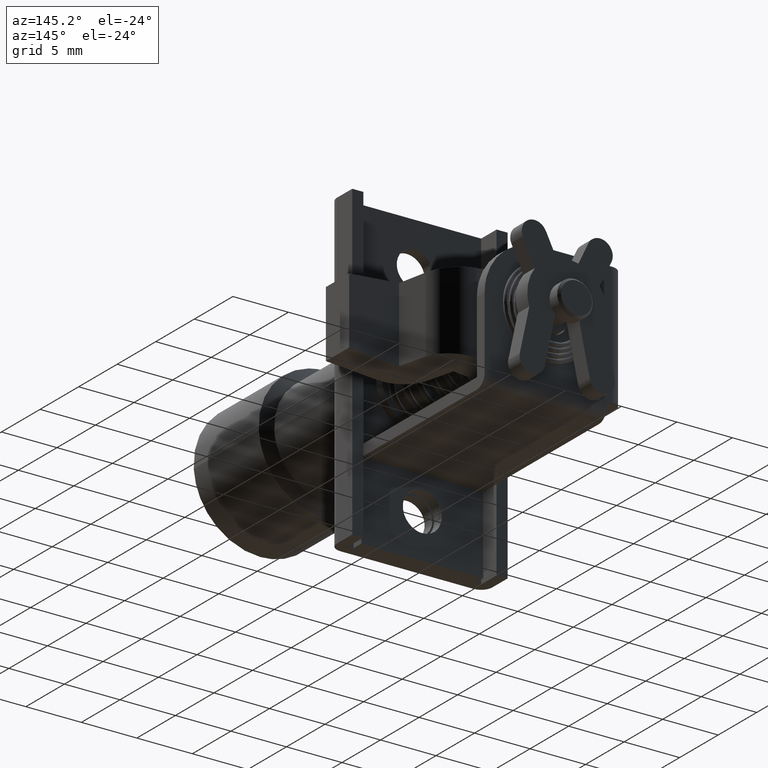
[diagram: clean part render]
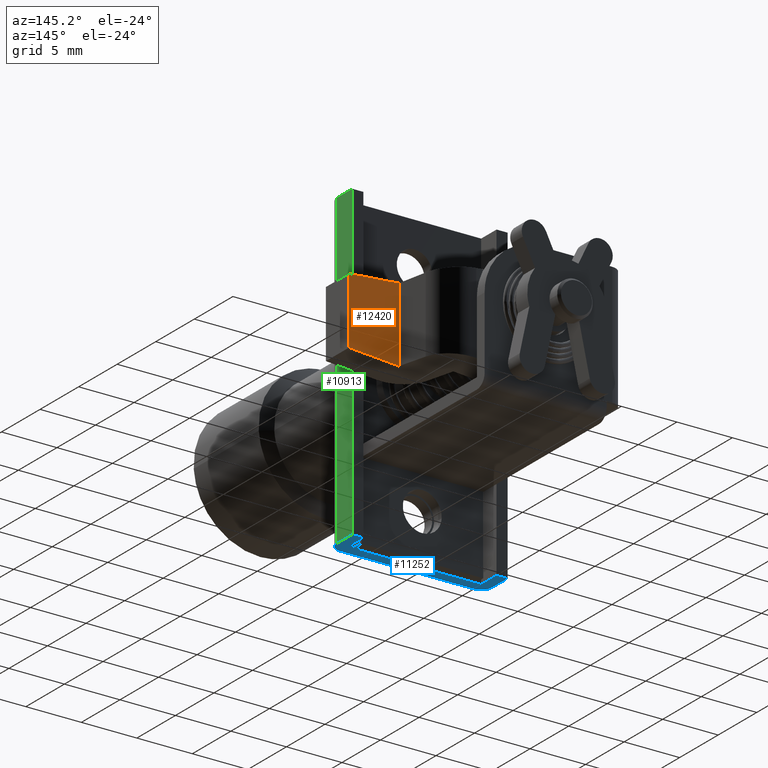
[diagram: same view with three faces highlighted in distinct colors, each labeled with its STEP entity id]
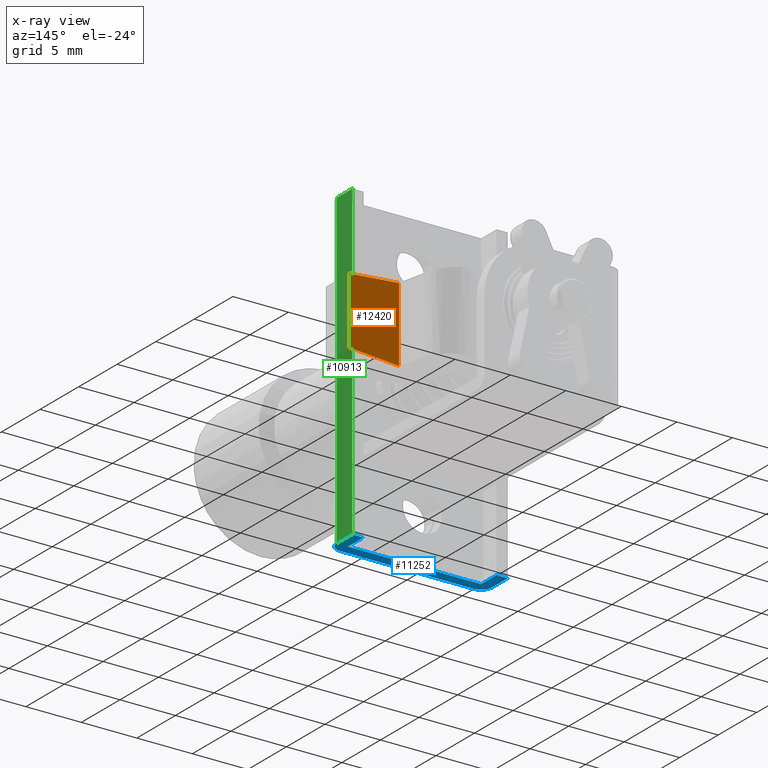
[diagram: x-ray of the same camera — body ghosted, the three highlighted faces saturated]
A machine part, auxiliary view with three faces highlighted in distinct colors.
The next image is the same camera in x-ray (body ghosted, the three faces saturated) — at least one of them is partly hidden behind the body in this view.
Their STEP definitions:

[orange] entity #12420 — the highlighted face is a freeform B-spline surface patch.
#12140=CARTESIAN_POINT('',(10.500000000000000,-12.499998577935640,2.999999999999785));
#12141=VERTEX_POINT('',#12140);
#12147=CARTESIAN_POINT('',(10.500000000000000,-8.000000000000091,3.359999886234840));
#12148=VERTEX_POINT('',#12147);
#12149=CARTESIAN_POINT('',(10.500000000000000,-12.499998577935640,2.999999999999785));
#12150=CARTESIAN_POINT('',(10.500000000000000,-8.000000000000091,3.359999886234840));
#12151=QUASI_UNIFORM_CURVE('',1,(#12149,#12150),.UNSPECIFIED.,.F.,.U.);
#12152=EDGE_CURVE('',#12141,#12148,#12151,.T.);
#12269=CARTESIAN_POINT('',(10.500000000000000,-8.000000000000091,-3.359999886234820));
#12270=VERTEX_POINT('',#12269);
#12276=CARTESIAN_POINT('',(10.500000000000000,-12.499998577935640,-3.0));
#12277=VERTEX_POINT('',#12276);
#12278=CARTESIAN_POINT('',(10.500000000000000,-8.000000000000091,-3.359999886234820));
#12279=CARTESIAN_POINT('',(10.500000000000000,-12.499998577935640,-3.0));
#12280=QUASI_UNIFORM_CURVE('',1,(#12278,#12279),.UNSPECIFIED.,.F.,.U.);
#12281=EDGE_CURVE('',#12270,#12277,#12280,.T.);
#12397=CARTESIAN_POINT('',(10.500000000000000,-12.499998577935640,-3.0));
#12398=CARTESIAN_POINT('',(10.500000000000000,-12.499998577935640,2.999999999999785));
#12399=QUASI_UNIFORM_CURVE('',1,(#12397,#12398),.UNSPECIFIED.,.F.,.U.);
#12400=EDGE_CURVE('',#12277,#12141,#12399,.T.);
#12405=CARTESIAN_POINT('',(10.500000000000000,-12.724774005094860,-3.695663861845016));
#12406=CARTESIAN_POINT('',(10.500000000000000,-12.724774005094860,3.695664042089476));
#12407=CARTESIAN_POINT('',(10.500000000000000,-7.775224934938978,-3.695663861845016));
#12408=CARTESIAN_POINT('',(10.500000000000000,-7.775224934938978,3.695664042089476));
#12409=B_SPLINE_SURFACE_WITH_KNOTS('',1,1,((#12405,#12407),(#12406,#12408)),.UNSPECIFIED.,.F.,.F.,.U.,(2,2),(2,2),(0.0,7.391327903934490),(0.0,4.949549070155880),.UNSPECIFIED.);
#12410=ORIENTED_EDGE('',*,*,#12152,.F.);
#12411=ORIENTED_EDGE('',*,*,#12400,.F.);
#12412=ORIENTED_EDGE('',*,*,#12281,.F.);
#12413=CARTESIAN_POINT('',(10.500000000000000,-8.000000000000091,-3.359999886234820));
#12414=CARTESIAN_POINT('',(10.500000000000000,-8.000000000000091,3.359999886234840));
#12415=QUASI_UNIFORM_CURVE('',1,(#12413,#12414),.UNSPECIFIED.,.F.,.U.);
#12416=EDGE_CURVE('',#12270,#12148,#12415,.T.);
#12417=ORIENTED_EDGE('',*,*,#12416,.T.);
#12418=EDGE_LOOP('',(#12410,#12411,#12412,#12417));
#12419=FACE_OUTER_BOUND('',#12418,.T.);
#12420=ADVANCED_FACE('',(#12419),#12409,.F.);

[blue] entity #11252 — the highlighted face is a freeform B-spline surface patch.
#10752=CARTESIAN_POINT('',(3.0,7.0,-13.999999722243301));
#10753=VERTEX_POINT('',#10752);
#10759=CARTESIAN_POINT('',(1.0,7.0,-13.999999722243301));
#10760=VERTEX_POINT('',#10759);
#10761=CARTESIAN_POINT('',(1.0,7.0,-13.999999722243301));
#10762=CARTESIAN_POINT('',(3.0,7.0,-13.999999722243301));
#10763=QUASI_UNIFORM_CURVE('',1,(#10761,#10762),.UNSPECIFIED.,.F.,.U.);
#10764=EDGE_CURVE('',#10760,#10753,#10763,.T.);
#10790=CARTESIAN_POINT('',(-7.347638E-016,6.0,-13.999999722243301));
#10791=VERTEX_POINT('',#10790);
#10792=CARTESIAN_POINT('',(1.0,7.0,-13.999999722243301));
#10793=CARTESIAN_POINT('',(0.0,6.999999999999999,-13.999999722243301));
#10794=CARTESIAN_POINT('',(0.0,6.0,-13.999999722243301));
#10802=(BOUNDED_CURVE()B_SPLINE_CURVE(2,(#10792,#10793,#10794),.UNSPECIFIED.,.F.,.U.)CURVE()GEOMETRIC_REPRESENTATION_ITEM()QUASI_UNIFORM_CURVE()RATIONAL_B_SPLINE_CURVE((1.0,0.707106781186548,1.0))REPRESENTATION_ITEM(''));
#10803=EDGE_CURVE('',#10760,#10791,#10802,.T.);
#10820=CARTESIAN_POINT('',(4.440892E-016,-6.0,-13.999999722243301));
#10821=VERTEX_POINT('',#10820);
#10822=CARTESIAN_POINT('',(4.440892E-016,-6.0,-13.999999722243301));
#10823=CARTESIAN_POINT('',(-7.347638E-016,6.0,-13.999999722243301));
#10824=QUASI_UNIFORM_CURVE('',1,(#10822,#10823),.UNSPECIFIED.,.F.,.U.);
#10825=EDGE_CURVE('',#10821,#10791,#10824,.T.);
#10869=CARTESIAN_POINT('',(1.0,-7.0,-13.999999722243301));
#10870=VERTEX_POINT('',#10869);
#10871=CARTESIAN_POINT('',(0.0,-6.0,-13.999999722243301));
#10872=CARTESIAN_POINT('',(0.0,-6.999999999999999,-13.999999722243301));
#10873=CARTESIAN_POINT('',(1.0,-7.0,-13.999999722243301));
#10881=(BOUNDED_CURVE()B_SPLINE_CURVE(2,(#10871,#10872,#10873),.UNSPECIFIED.,.F.,.U.)CURVE()GEOMETRIC_REPRESENTATION_ITEM()QUASI_UNIFORM_CURVE()RATIONAL_B_SPLINE_CURVE((1.0,0.707106781186548,1.0))REPRESENTATION_ITEM(''));
#10882=EDGE_CURVE('',#10821,#10870,#10881,.T.);
#10899=CARTESIAN_POINT('',(3.0,-7.0,-13.999999722243301));
#10900=VERTEX_POINT('',#10899);
#10901=CARTESIAN_POINT('',(3.0,-7.0,-13.999999722243301));
#10902=CARTESIAN_POINT('',(1.0,-7.0,-13.999999722243301));
#10903=QUASI_UNIFORM_CURVE('',1,(#10901,#10902),.UNSPECIFIED.,.F.,.U.);
#10904=EDGE_CURVE('',#10900,#10870,#10903,.T.);
#10921=CARTESIAN_POINT('',(3.0,-6.0,-13.999999722243301));
#10922=VERTEX_POINT('',#10921);
#10923=CARTESIAN_POINT('',(3.0,-6.0,-13.999999722243301));
#10924=CARTESIAN_POINT('',(3.0,-7.0,-13.999999722243301));
#10925=QUASI_UNIFORM_CURVE('',1,(#10923,#10924),.UNSPECIFIED.,.F.,.U.);
#10926=EDGE_CURVE('',#10922,#10900,#10925,.T.);
#10943=CARTESIAN_POINT('',(1.0,-6.0,-13.999999722243301));
#10944=VERTEX_POINT('',#10943);
#10945=CARTESIAN_POINT('',(1.0,-6.0,-13.999999722243301));
#10946=CARTESIAN_POINT('',(3.0,-6.0,-13.999999722243301));
#10947=QUASI_UNIFORM_CURVE('',1,(#10945,#10946),.UNSPECIFIED.,.F.,.U.);
#10948=EDGE_CURVE('',#10944,#10922,#10947,.T.);
#10964=CARTESIAN_POINT('',(1.0,6.0,-13.999999722243301));
#10965=VERTEX_POINT('',#10964);
#10971=CARTESIAN_POINT('',(3.0,6.0,-13.999999722243301));
#10972=VERTEX_POINT('',#10971);
#10973=CARTESIAN_POINT('',(3.0,6.0,-13.999999722243301));
#10974=CARTESIAN_POINT('',(1.0,6.0,-13.999999722243301));
#10975=QUASI_UNIFORM_CURVE('',1,(#10973,#10974),.UNSPECIFIED.,.F.,.U.);
#10976=EDGE_CURVE('',#10972,#10965,#10975,.T.);
#11013=CARTESIAN_POINT('',(3.0,7.0,-13.999999722243301));
#11014=CARTESIAN_POINT('',(3.0,6.0,-13.999999722243301));
#11015=QUASI_UNIFORM_CURVE('',1,(#11013,#11014),.UNSPECIFIED.,.F.,.U.);
#11016=EDGE_CURVE('',#10753,#10972,#11015,.T.);
#11079=CARTESIAN_POINT('',(1.0,6.0,-13.999999722243301));
#11080=CARTESIAN_POINT('',(1.0,-6.0,-13.999999722243301));
#11081=QUASI_UNIFORM_CURVE('',1,(#11079,#11080),.UNSPECIFIED.,.F.,.U.);
#11082=EDGE_CURVE('',#10965,#10944,#11081,.T.);
#11235=CARTESIAN_POINT('',(-0.149849994185419,7.699299972865286,-13.999999722243301));
#11236=CARTESIAN_POINT('',(3.149850074651689,7.699299972865286,-13.999999722243301));
#11237=CARTESIAN_POINT('',(-0.149849994185419,-7.699300348374547,-13.999999722243301));
#11238=CARTESIAN_POINT('',(3.149850074651689,-7.699300348374547,-13.999999722243301));
#11239=B_SPLINE_SURFACE_WITH_KNOTS('',1,1,((#11235,#11237),(#11236,#11238)),.UNSPECIFIED.,.F.,.F.,.U.,(2,2),(2,2),(0.0,3.299700068837107),(0.0,15.398600321239829),.UNSPECIFIED.);
#11240=ORIENTED_EDGE('',*,*,#11082,.T.);
#11241=ORIENTED_EDGE('',*,*,#10948,.T.);
#11242=ORIENTED_EDGE('',*,*,#10926,.T.);
#11243=ORIENTED_EDGE('',*,*,#10904,.T.);
#11244=ORIENTED_EDGE('',*,*,#10882,.F.);
#11245=ORIENTED_EDGE('',*,*,#10825,.T.);
#11246=ORIENTED_EDGE('',*,*,#10803,.F.);
#11247=ORIENTED_EDGE('',*,*,#10764,.T.);
#11248=ORIENTED_EDGE('',*,*,#11016,.T.);
#11249=ORIENTED_EDGE('',*,*,#10976,.T.);
#11250=EDGE_LOOP('',(#11240,#11241,#11242,#11243,#11244,#11245,#11246,#11247,#11248,#11249));
#11251=FACE_OUTER_BOUND('',#11250,.T.);
#11252=ADVANCED_FACE('',(#11251),#11239,.T.);

[green] entity #10913 — the highlighted face is a freeform B-spline surface patch.
#10672=CARTESIAN_POINT('',(1.0,-7.0,14.000000277756600));
#10673=VERTEX_POINT('',#10672);
#10687=CARTESIAN_POINT('',(3.0,-7.0,14.000000277756600));
#10688=VERTEX_POINT('',#10687);
#10689=CARTESIAN_POINT('',(3.0,-7.0,14.000000277756600));
#10690=CARTESIAN_POINT('',(1.0,-7.0,14.000000277756600));
#10691=QUASI_UNIFORM_CURVE('',1,(#10689,#10690),.UNSPECIFIED.,.F.,.U.);
#10692=EDGE_CURVE('',#10688,#10673,#10691,.T.);
#10869=CARTESIAN_POINT('',(1.0,-7.0,-13.999999722243301));
#10870=VERTEX_POINT('',#10869);
#10884=CARTESIAN_POINT('',(1.0,-7.0,-13.999999722243301));
#10885=CARTESIAN_POINT('',(1.0,-7.0,14.000000277756600));
#10886=QUASI_UNIFORM_CURVE('',1,(#10884,#10885),.UNSPECIFIED.,.F.,.U.);
#10887=EDGE_CURVE('',#10870,#10673,#10886,.T.);
#10892=CARTESIAN_POINT('',(0.900100003876388,-7.0,-15.398599930817831));
#10893=CARTESIAN_POINT('',(0.900100003876388,-7.0,15.398600987010150));
#10894=CARTESIAN_POINT('',(3.099900049767792,-7.0,-15.398599930817831));
#10895=CARTESIAN_POINT('',(3.099900049767792,-7.0,15.398600987010150));
#10896=B_SPLINE_SURFACE_WITH_KNOTS('',1,1,((#10892,#10894),(#10893,#10895)),.UNSPECIFIED.,.F.,.F.,.U.,(2,2),(2,2),(0.0,30.797200917827979),(0.0,2.199800045891404),.UNSPECIFIED.);
#10897=ORIENTED_EDGE('',*,*,#10692,.T.);
#10898=ORIENTED_EDGE('',*,*,#10887,.F.);
#10899=CARTESIAN_POINT('',(3.0,-7.0,-13.999999722243301));
#10900=VERTEX_POINT('',#10899);
#10901=CARTESIAN_POINT('',(3.0,-7.0,-13.999999722243301));
#10902=CARTESIAN_POINT('',(1.0,-7.0,-13.999999722243301));
#10903=QUASI_UNIFORM_CURVE('',1,(#10901,#10902),.UNSPECIFIED.,.F.,.U.);
#10904=EDGE_CURVE('',#10900,#10870,#10903,.T.);
#10905=ORIENTED_EDGE('',*,*,#10904,.F.);
#10906=CARTESIAN_POINT('',(3.0,-7.0,-13.999999722243301));
#10907=CARTESIAN_POINT('',(3.0,-7.0,14.000000277756600));
#10908=QUASI_UNIFORM_CURVE('',1,(#10906,#10907),.UNSPECIFIED.,.F.,.U.);
#10909=EDGE_CURVE('',#10900,#10688,#10908,.T.);
#10910=ORIENTED_EDGE('',*,*,#10909,.T.);
#10911=EDGE_LOOP('',(#10897,#10898,#10905,#10910));
#10912=FACE_OUTER_BOUND('',#10911,.T.);
#10913=ADVANCED_FACE('',(#10912),#10896,.F.);